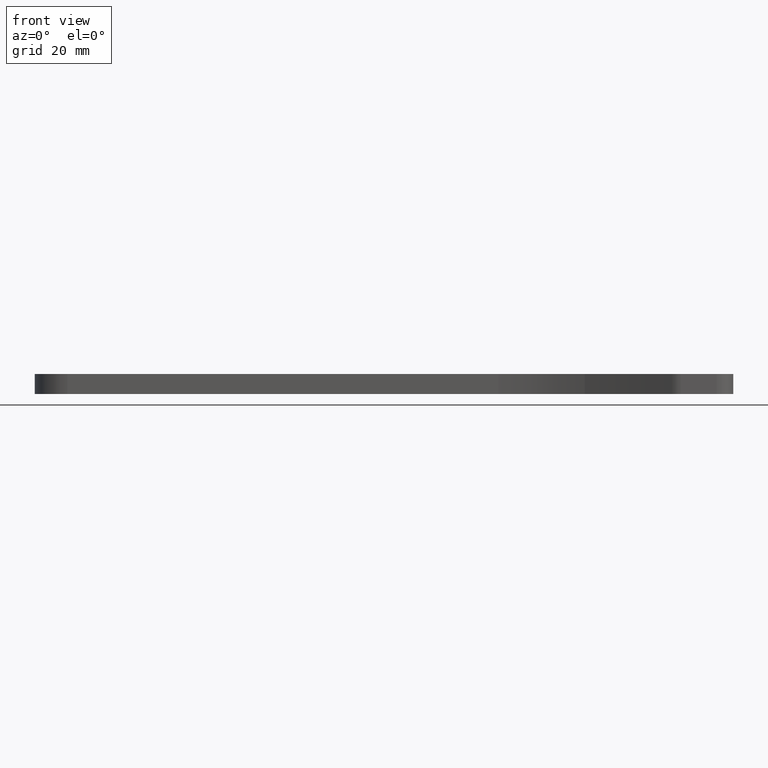
[diagram: clean part render]
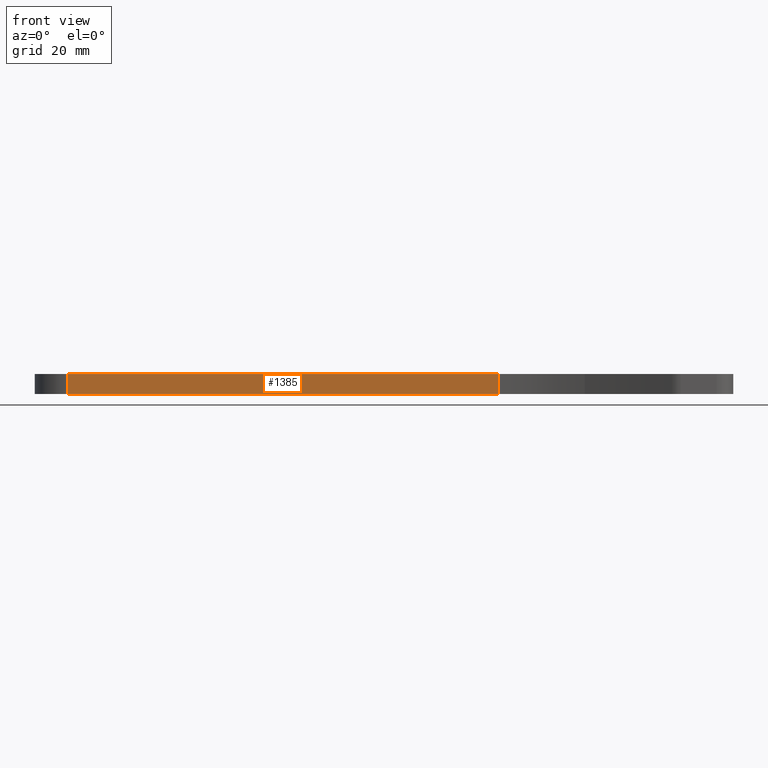
[diagram: same view with one face highlighted and labeled with its STEP entity id]
A machine part, front view. The second image highlights one B-rep face of the part: STEP entity #1385.
In plain terms, the highlighted planar face has unit normal (-0.0192, -0.9998, 0).
Its self-contained STEP definition (entity closure, byte-faithful):
#41 = EDGE_CURVE ( 'NONE', #471, #62, #978, .T. ) ;
#62 = VERTEX_POINT ( 'NONE', #772 ) ;
#78 = DIRECTION ( 'NONE',  ( -0.0000000000000000000, -0.0000000000000000000, -1.000000000000000000 ) ) ;
#99 = CARTESIAN_POINT ( 'NONE',  ( -67.59248863366760000, -12.48555840003721900, 6.000000000000000000 ) ) ;
#122 = DIRECTION ( 'NONE',  ( 0.9998158079562803300, -0.01919245061815623800, 0.0000000000000000000 ) ) ;
#130 = EDGE_CURVE ( 'NONE', #960, #553, #1605, .T. ) ;
#139 = CARTESIAN_POINT ( 'NONE',  ( -67.59248863315484400, -12.48555838861780600, 0.0000000000000000000 ) ) ;
#167 = DIRECTION ( 'NONE',  ( 0.0000000000000000000, 0.0000000000000000000, -1.000000000000000000 ) ) ;
#184 = PLANE ( 'NONE',  #258 ) ;
#252 = VECTOR ( 'NONE', #78, 1000.000000000000000 ) ;
#258 = AXIS2_PLACEMENT_3D ( 'NONE', #1379, #1257, #460 ) ;
#460 = DIRECTION ( 'NONE',  ( 0.9998158079562803300, -0.01919245061815623800, 0.0000000000000000000 ) ) ;
#471 = VERTEX_POINT ( 'NONE', #655 ) ;
#485 = EDGE_CURVE ( 'NONE', #62, #553, #1372, .T. ) ;
#497 = VECTOR ( 'NONE', #982, 1000.000000000000000 ) ;
#553 = VERTEX_POINT ( 'NONE', #139 ) ;
#655 = CARTESIAN_POINT ( 'NONE',  ( -197.1716757432827500, -9.998158091966482500, 6.000000000000000000 ) ) ;
#710 = EDGE_LOOP ( 'NONE', ( #1093, #1250, #1568, #1267 ) ) ;
#772 = CARTESIAN_POINT ( 'NONE',  ( -197.1716757430949100, -9.998158079998175300, -2.168404344971008900E-016 ) ) ;
#839 = CARTESIAN_POINT ( 'NONE',  ( -67.59248862842976300, -12.48555838823328700, 3.000000000000000000 ) ) ;
#881 = VECTOR ( 'NONE', #167, 1000.000000000000000 ) ;
#889 = CARTESIAN_POINT ( 'NONE',  ( -197.1716757429999500, -9.998158079999997800, 3.000000000000000000 ) ) ;
#960 = VERTEX_POINT ( 'NONE', #99 ) ;
#978 = LINE ( 'NONE', #889, #252 ) ;
#982 = DIRECTION ( 'NONE',  ( 0.9998158079564410900, -0.01919245060978547500, 0.0000000000000000000 ) ) ;
#986 = VECTOR ( 'NONE', #122, 1000.000000000000100 ) ;
#1093 = ORIENTED_EDGE ( 'NONE', *, *, #1197, .F. ) ;
#1197 = EDGE_CURVE ( 'NONE', #471, #960, #1534, .T. ) ;
#1250 = ORIENTED_EDGE ( 'NONE', *, *, #41, .T. ) ;
#1254 = CARTESIAN_POINT ( 'NONE',  ( -197.1716756879799300, -9.998158104999987500, 6.000000000000000000 ) ) ;
#1257 = DIRECTION ( 'NONE',  ( -0.01919245061815623800, -0.9998158079562803300, 0.0000000000000000000 ) ) ;
#1267 = ORIENTED_EDGE ( 'NONE', *, *, #130, .F. ) ;
#1306 = FACE_OUTER_BOUND ( 'NONE', #710, .T. ) ;
#1372 = LINE ( 'NONE', #1734, #986 ) ;
#1379 = CARTESIAN_POINT ( 'NONE',  ( -197.1716757429999500, -9.998158079999997800, 0.0000000000000000000 ) ) ;
#1385 = ADVANCED_FACE ( 'NONE', ( #1306 ), #184, .T. ) ;
#1534 = LINE ( 'NONE', #1254, #497 ) ;
#1568 = ORIENTED_EDGE ( 'NONE', *, *, #485, .T. ) ;
#1605 = LINE ( 'NONE', #839, #881 ) ;
#1734 = CARTESIAN_POINT ( 'NONE',  ( -197.1716757429999500, -9.998158079999997800, 0.0000000000000000000 ) ) ;